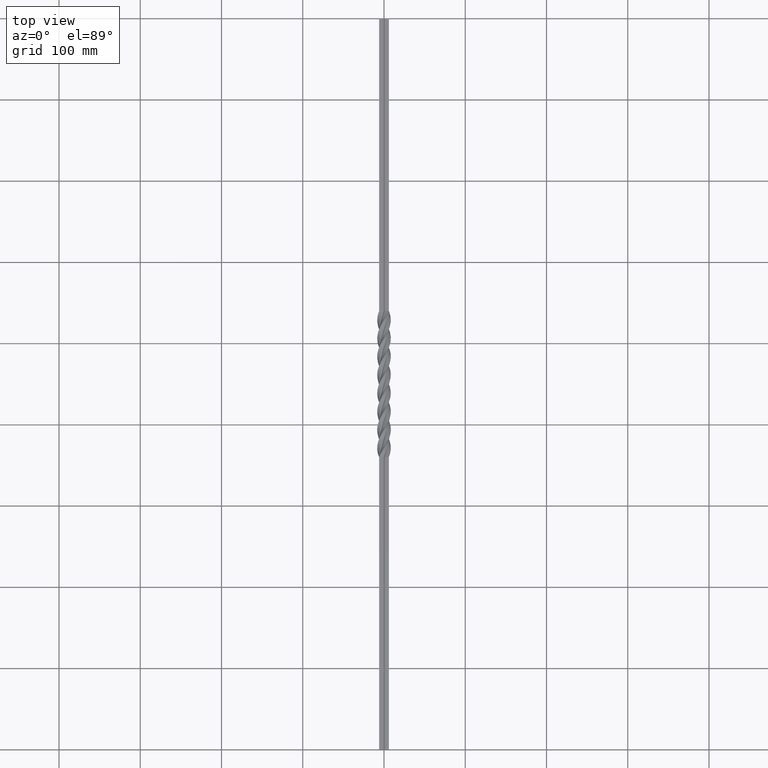
[diagram: clean part render]
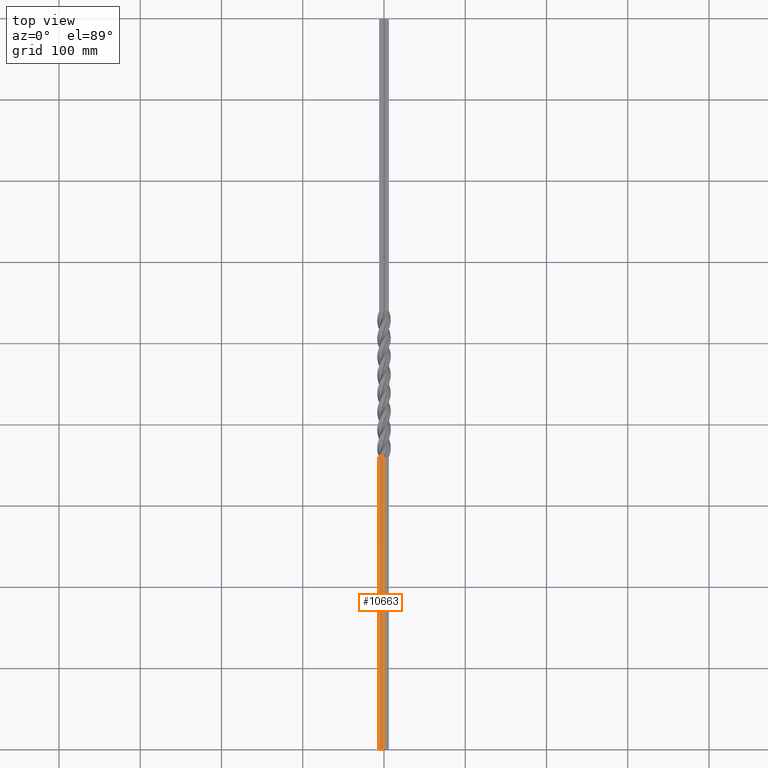
[diagram: same view with one face highlighted and labeled with its STEP entity id]
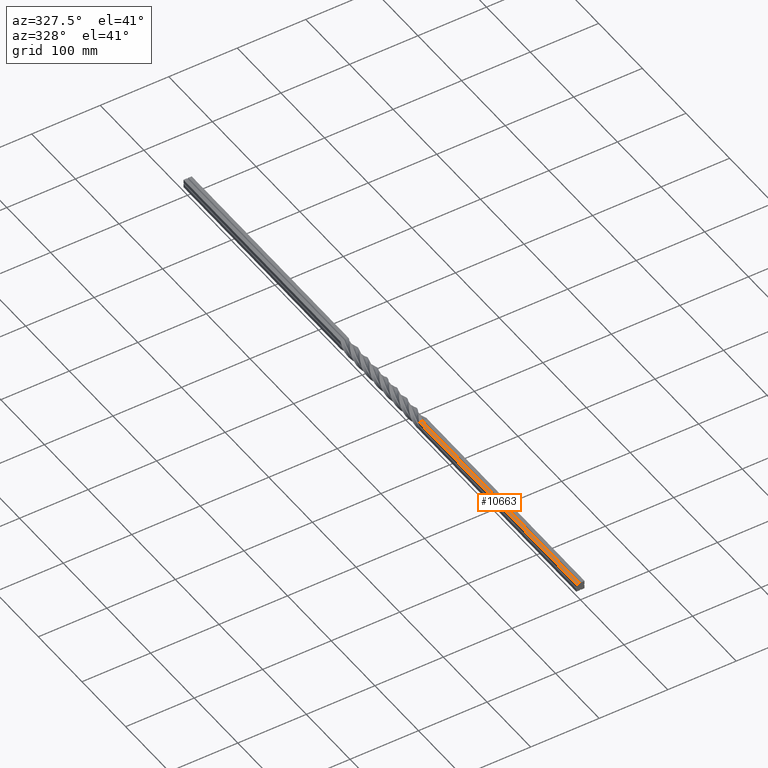
[diagram: same view with one face highlighted and labeled with its STEP entity id]
A machine part, top view. The second image highlights one B-rep face of the part: STEP entity #10663.
A second angle (auxiliary view) of the same face is appended — the face is thin or edge-on in the first view.
In plain terms, the highlighted planar face has unit normal (0, 0, -1).
Its self-contained STEP definition (entity closure, byte-faithful):
#354 = AXIS2_PLACEMENT_3D ( 'NONE', #12999, #6688, #3621 ) ;
#1421 = LINE ( 'NONE', #13527, #8829 ) ;
#2281 = ORIENTED_EDGE ( 'NONE', *, *, #7162, .T. ) ;
#2725 = CARTESIAN_POINT ( 'NONE',  ( -0.9999999999999890088, 360.0000000000000000, 6.000000000000000888 ) ) ;
#2790 = VERTEX_POINT ( 'NONE', #6582 ) ;
#3537 = EDGE_CURVE ( 'NONE', #2790, #5495, #1421, .T. ) ;
#3621 = DIRECTION ( 'NONE',  ( -1.000000000000000000, 0.000000000000000000, -0.000000000000000000 ) ) ;
#3780 = VERTEX_POINT ( 'NONE', #4040 ) ;
#4040 = CARTESIAN_POINT ( 'NONE',  ( -5.999999999999998224, 0.000000000000000000, 6.000000000000000888 ) ) ;
#4506 = LINE ( 'NONE', #11762, #10405 ) ;
#4581 = ORIENTED_EDGE ( 'NONE', *, *, #3537, .F. ) ;
#4756 = VERTEX_POINT ( 'NONE', #12161 ) ;
#4974 = VECTOR ( 'NONE', #5731, 1000.000000000000000 ) ;
#5495 = VERTEX_POINT ( 'NONE', #2725 ) ;
#5723 = CARTESIAN_POINT ( 'NONE',  ( -5.999999999999998224, 900.0000000000000000, 6.000000000000000888 ) ) ;
#5731 = DIRECTION ( 'NONE',  ( 1.000000000000000000, 0.000000000000000000, 0.000000000000000000 ) ) ;
#5771 = LINE ( 'NONE', #5723, #10884 ) ;
#6069 = EDGE_CURVE ( 'NONE', #5495, #4756, #4506, .T. ) ;
#6432 = DIRECTION ( 'NONE',  ( -0.000000000000000000, -1.000000000000000000, -0.000000000000000000 ) ) ;
#6469 = LINE ( 'NONE', #9885, #4974 ) ;
#6582 = CARTESIAN_POINT ( 'NONE',  ( -5.999999999999998224, 360.0000000000000000, 6.000000000000000888 ) ) ;
#6688 = DIRECTION ( 'NONE',  ( 0.000000000000000000, 0.000000000000000000, -1.000000000000000000 ) ) ;
#7162 = EDGE_CURVE ( 'NONE', #2790, #3780, #5771, .T. ) ;
#7739 = PLANE ( 'NONE',  #354 ) ;
#7799 = ORIENTED_EDGE ( 'NONE', *, *, #6069, .F. ) ;
#8829 = VECTOR ( 'NONE', #12570, 1000.000000000000000 ) ;
#8863 = ORIENTED_EDGE ( 'NONE', *, *, #12834, .T. ) ;
#9885 = CARTESIAN_POINT ( 'NONE',  ( -5.999999999999998224, 0.000000000000000000, 6.000000000000000888 ) ) ;
#10405 = VECTOR ( 'NONE', #6432, 1000.000000000000000 ) ;
#10440 = FACE_OUTER_BOUND ( 'NONE', #13277, .T. ) ;
#10663 = ADVANCED_FACE ( 'NONE', ( #10440 ), #7739, .F. ) ;
#10884 = VECTOR ( 'NONE', #11983, 1000.000000000000000 ) ;
#11762 = CARTESIAN_POINT ( 'NONE',  ( -0.9999999999999892308, 900.0000000000000000, 6.000000000000000888 ) ) ;
#11983 = DIRECTION ( 'NONE',  ( -0.000000000000000000, -1.000000000000000000, -0.000000000000000000 ) ) ;
#12161 = CARTESIAN_POINT ( 'NONE',  ( -0.9999999999999892308, 0.000000000000000000, 6.000000000000000888 ) ) ;
#12570 = DIRECTION ( 'NONE',  ( 1.000000000000000000, -6.274767288963247119E-19, 0.000000000000000000 ) ) ;
#12834 = EDGE_CURVE ( 'NONE', #3780, #4756, #6469, .T. ) ;
#12999 = CARTESIAN_POINT ( 'NONE',  ( -5.999999999999998224, 900.0000000000000000, 6.000000000000000888 ) ) ;
#13277 = EDGE_LOOP ( 'NONE', ( #4581, #2281, #8863, #7799 ) ) ;
#13527 = CARTESIAN_POINT ( 'NONE',  ( -5.999999999999998224, 360.0000000000000000, 6.000000000000000888 ) ) ;